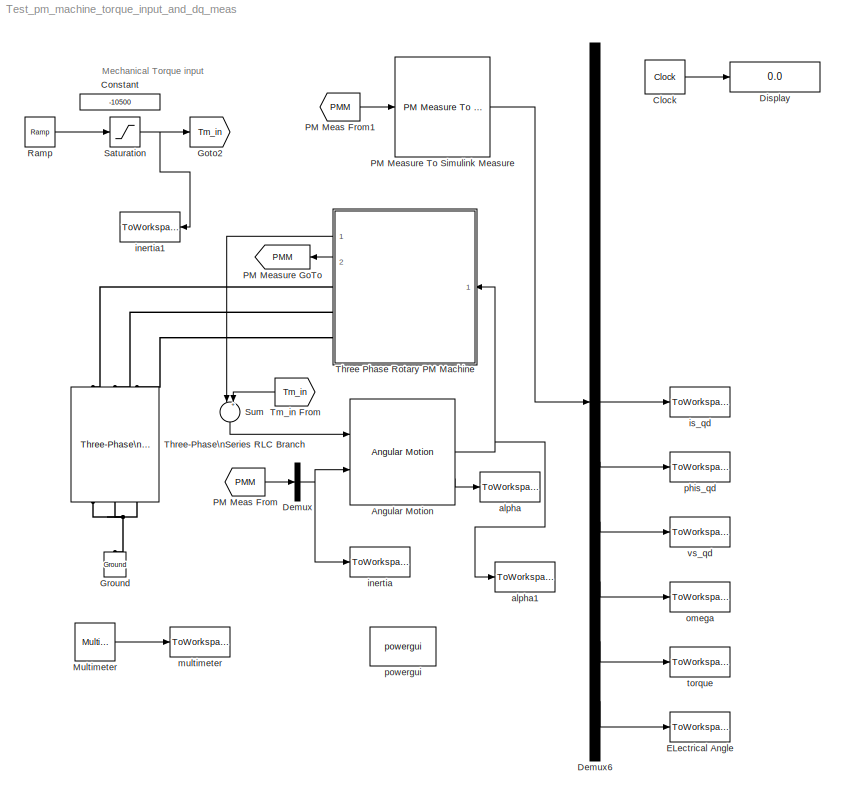
MODEL Test_pm_machine_torque_input_and_dq_meas
KIND model
BLOCK [Reference] Angular Motion  REF=pm_machines_library/Angular Motion  (lib defined in slx_81e85edba9f0)
  FunctionWithSeparateData = off
  GeneratePreprocessorConditionals = off
  Ports = [2, 3]
  RTWMemSecDataConstants = Inherit from model
  RTWMemSecDataInternal = Inherit from model
  RTWMemSecDataParameters = Inherit from model
  RTWMemSecFuncExecute = Inherit from model
  RTWMemSecFuncInitTerm = Inherit from model
  SID = 1
  ShowPortLabels = FromPortIcon
  SourceBlock = pm_machines_library/Angular Motion
  SourceType = SubSystem
  SystemSampleTime = -1
BLOCK [Clock] Clock
  Decimation = 10
  SID = 166
BLOCK [Constant] Constant
  SID = 137
  Value = -10500
BLOCK [Demux] Demux
  DisplayOption = bar
  Outputs = [10, 1, 6]
  Ports = [1, 3]
  SID = 2
BLOCK [Demux] Demux6
  DisplayOption = bar
  Outputs = [3 2 2 2 3 2 2 2 1 1 1]
  Ports = [1, 11]
  SID = 136
BLOCK [Display] Display
  Decimation = 1
  Lockdown = off
  Ports = [1]
  SID = 167
BLOCK [ToWorkspace] ELectrical Angle
  MaxDataPoints = inf
  Ports = [1]
  SID = 155
  SampleTime = -1
  SaveFormat = Array
  VariableName = E_theta
BLOCK [Goto] Goto2
  GotoTag = Tm_in
  SID = 138
  TagVisibility = global
BLOCK [Reference] Ground  REF=powerlib/Elements/Ground
  LConnTagsString = a
  LeftPortType = p1
  PhysicalDomain = powersysdomain
  Ports = [0, 0, 0, 0, 0, 1]
  RightPortType = p1
  SID = 150
  SourceBlock = powerlib/Elements/Ground
  SourceType = Ground
  SubClassName = unknown
BLOCK [Reference] Multimeter  REF=powerlib/Measurements/Multimeter
  AxesSetting = [0,0.1,-100,100]
  Display = 0
  FunctionWithSeparateData = off
  Gain = [1 1 1 1 1 1]
  GeneratePreprocessorConditionals = off
  L = 6
  OutputType = Complex
  PSBOutputType = 1
  PSBequivalent = 0
  PhasorSimulation = off
  Ports = [0, 1, 0, 0, 0, 1]
  RTWMemSecDataConstants = Inherit from model
  RTWMemSecDataInternal = Inherit from model
  RTWMemSecDataParameters = Inherit from model
  RTWMemSecFuncExecute = Inherit from model
  RTWMemSecFuncInitTerm = Inherit from model
  SID = 157
  SavedBlockNames = -11
  ShowPortLabels = FromPortIcon
  SourceBlock = powerlib/Measurements/Multimeter
  SourceType = MultimeterPSB
  SystemSampleTime = -1
  sel = [1 2 3 4 5 6]
  yselected = {'Ub1: Three-Phase Series RLC Branch','Ub2: Three-Phase Series RLC Branch','Ub3: Three-Phase Series RLC Branch','Ib1: Three-Phase Series RLC Branch','Ib2: Three-Phase Series RLC Branch','Ib3: Three-Phase Series RLC Branch'};
BLOCK [From] PM Meas From
  GotoTag = PMM
  SID = 130
BLOCK [From] PM Meas From1
  GotoTag = PMM
  SID = 131
BLOCK [Goto] PM Measure GoTo
  GotoTag = PMM
  SID = 132
  TagVisibility = local
BLOCK [Reference] PM Measure To Simulink Measure  REF=pm_machines_library/PM Measure To Simulink Measure  (lib defined in slx_81e85edba9f0)
  FunctionWithSeparateData = off
  GeneratePreprocessorConditionals = off
  Ports = [1, 1]
  RTWMemSecDataConstants = Inherit from model
  RTWMemSecDataInternal = Inherit from model
  RTWMemSecDataParameters = Inherit from model
  RTWMemSecFuncExecute = Inherit from model
  RTWMemSecFuncInitTerm = Inherit from model
  SID = 159
  ShowPortLabels = FromPortIcon
  SourceBlock = pm_machines_library/PM Measure To Simulink Measure
  SystemSampleTime = -1
  ref_type = Stationary
BLOCK [Reference] Ramp  REF=simulink/Sources/Ramp
  FunctionWithSeparateData = off
  GeneratePreprocessorConditionals = off
  Ports = [0, 1]
  RTWMemSecDataConstants = Inherit from model
  RTWMemSecDataInternal = Inherit from model
  RTWMemSecDataParameters = Inherit from model
  RTWMemSecFuncExecute = Inherit from model
  RTWMemSecFuncInitTerm = Inherit from model
  SID = 164
  ShowPortLabels = FromPortIcon
  SourceBlock = simulink/Sources/Ramp
  SourceType = Ramp
  SystemSampleTime = -1
  VectorParams1D = on
  X0 = 0
  slope = 5000
  start = 0
BLOCK [Saturate] Saturation
  InputPortMap = u0
  LowerLimit = -10500
  Ports = [1, 1]
  SID = 165
  UpperLimit = 10500
BLOCK [Sum] Sum
  IconShape = round
  InputSameDT = off
  Inputs = |++
  OutDataTypeStr = Inherit: Inherit via internal rule
  Ports = [2, 1]
  SID = 134
  SaturateOnIntegerOverflow = off
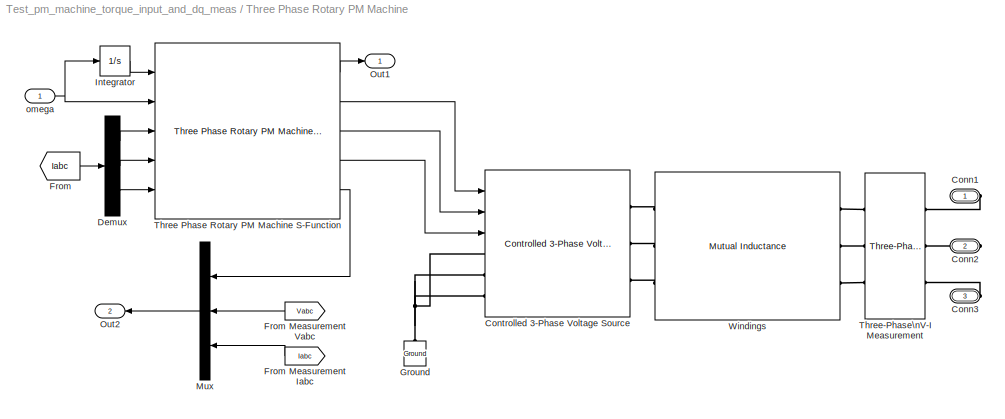
BLOCK [SubSystem] Three Phase Rotary PM Machine
  AncestorBlock = pm_machines_library/Three Phase Rotary PM Machine
  FunctionWithSeparateData = off
  MaskDisplay = port_label('input', 1, 'Omega')\nport_label('output', 1, 'Torque')\nport_label('output', 2, 'Meas')\nport_label('rconn', 1, 'Phase A')\nport_label('rconn', 2, 'Phase B')\nport_label('rconn', 3, 'Phase C')
  MaskHideContents = off
  MaskIconFrame = on
  MaskIconOpaque = on
  MaskIconRotate = none
  MaskIconUnits = autoscale
  MaskPortRotate = default
  MinAlgLoopOccurrences = off
  Opaque = off
  Ports = [1, 2, 0, 0, 0, 0, 3]
  PropExecContextOutsideSubsystem = off
  RTWSystemCode = Auto
  RequestExecContextInheritance = off
  SID = 135
BLOCK [PMIOPort] Three Phase Rotary PM Machine/Conn1
  Port = 1
  SID = 135:26
  Side = Right
BLOCK [PMIOPort] Three Phase Rotary PM Machine/Conn2
  Port = 2
  SID = 135:27
  Side = Right
BLOCK [PMIOPort] Three Phase Rotary PM Machine/Conn3
  Port = 3
  SID = 135:28
  Side = Right
BLOCK [Reference] Three Phase Rotary PM Machine/Controlled 3-Phase Voltage Source  REF=pm_machines_library/Controlled 3-Phase Voltage Source  (lib defined in slx_81e85edba9f0)
  FunctionWithSeparateData = off
  GeneratePreprocessorConditionals = off
  Ports = [3, 0, 0, 0, 0, 3, 3]
  RTWMemSecDataConstants = Inherit from model
  RTWMemSecDataInternal = Inherit from model
  RTWMemSecDataParameters = Inherit from model
  RTWMemSecFuncExecute = Inherit from model
  RTWMemSecFuncInitTerm = Inherit from model
  SID = 135:18
  ShowPortLabels = FromPortIcon
  SourceBlock = pm_machines_library/Controlled 3-Phase Voltage Source
  SourceType = Controlled 3-Phase Voltage Source
  SystemSampleTime = -1
BLOCK [Demux] Three Phase Rotary PM Machine/Demux
  DisplayOption = bar
  Outputs = 3
  Ports = [1, 3]
  SID = 135:19
BLOCK [From] Three Phase Rotary PM Machine/From
  GotoTag = Iabc
  SID = 135:20
  TagVisibility = global
BLOCK [From] Three Phase Rotary PM Machine/From Measurement Iabc
  GotoTag = Iabc
  SID = 135:45
  TagVisibility = global
BLOCK [From] Three Phase Rotary PM Machine/From Measurement Vabc
  GotoTag = Vabc
  SID = 135:44
  TagVisibility = global
BLOCK [Reference] Three Phase Rotary PM Machine/Ground  REF=powerlib/Elements/Ground
  LConnTagsString = a
  LeftPortType = p1
  PhysicalDomain = powersysdomain
  Ports = [0, 0, 0, 0, 0, 1]
  RightPortType = p1
  SID = 135:21
  SourceBlock = powerlib/Elements/Ground
  SourceType = Ground
  SubClassName = unknown
BLOCK [Integrator] Three Phase Rotary PM Machine/Integrator
  Ports = [1, 1]
  SID = 135:22
BLOCK [Mux] Three Phase Rotary PM Machine/Mux
  DisplayOption = bar
  Inputs = 3
  Ports = [3, 1]
  SID = 135:43
BLOCK [Outport] Three Phase Rotary PM Machine/Out1
  IconDisplay = Port number
  SID = 135:29
BLOCK [Outport] Three Phase Rotary PM Machine/Out2
  IconDisplay = Port number
  Port = 2
  SID = 135:30
BLOCK [Reference] Three Phase Rotary PM Machine/Three Phase Rotary PM Machine S-Function  REF=pm_machines_library/Three Phase Rotary PM Machine S-Function  (lib defined in slx_81e85edba9f0)
  Ports = [5, 5]
  SID = 135:23
  SourceBlock = pm_machines_library/Three Phase Rotary PM Machine S-Function
  UserData = DataTag0
  UserDataPersistent = on
BLOCK [Reference] Three Phase Rotary PM Machine/Three-Phase\nV-I Measurement  REF=powerlib/Measurements/Three-Phase\nV-I Measurement
  CurrentMeasurement = yes
  FunctionWithSeparateData = off
  GeneratePreprocessorConditionals = off
  Ipu = off
  LabelI = Iabc
  LabelV = Vabc
  OutputType = Complex
  PSBequivalent = 0
  Pbase = 100e6
  PhasorSimulation = off
  Ports = [0, 0, 0, 0, 0, 3, 3]
  RTWMemSecDataConstants = Inherit from model
  RTWMemSecDataInternal = Inherit from model
  RTWMemSecDataParameters = Inherit from model
  RTWMemSecFuncExecute = Inherit from model
  RTWMemSecFuncInitTerm = Inherit from model
  SID = 135:24
  SetLabelI = on
  SetLabelV = on
  ShowPortLabels = FromPortIcon
  SourceBlock = powerlib/Measurements/Three-Phase\nV-I Measurement
  SourceType = Three-Phase VI Measurement
  SystemSampleTime = -1
  Vbase = 500e3
  VoltageMeasurement = phase-to-ground
  Vpu = off
  VpuLL = off
BLOCK [Reference] Three Phase Rotary PM Machine/Windings  REF=powerlib/Elements/Mutual Inductance
  AttributesFormatString = \\n
  InductanceMatrix = [1.0 0.9  0.9 ;  0.9 1.0  0.9;  0.9 0.9 1.0 ] * 1e-3
  LConnTagsString = a|b|c
  LeftPortType = p1
  Measurements = None
  MutualImpedance = [0 0.0565839]
  NumberOfWindings = 3
  PhysicalDomain = powersysdomain
  Ports = [0, 0, 0, 0, 0, 3, 3]
  RConnTagsString = A|B|C
  ResistanceMatrix = [1.0 0.9  0.9 ;  0.9 1.0  0.9;  0.9 0.9 1.0 ]
  RightPortType = p1
  SID = 135:25
  SelfImpedance1 = [1.43469 0.184324]
  SelfImpedance2 = [1.43472 0.184324]
  SelfImpedance3 = [1.43475 0.184324]
  SourceBlock = powerlib/Elements/Mutual Inductance
  SourceType = Mutual Inductance
  SubClassName = unknown
  ThreeWindings = on
  TypeOfMutual = Two or three windings with equal mutual terms
BLOCK [Inport] Three Phase Rotary PM Machine/omega
  IconDisplay = Port number
  SID = 135:17
BLOCK [Reference] Three-Phase\nSeries RLC Branch  REF=powerlib/Elements/Three-Phase\nSeries RLC Branch
  AttributesFormatString = \\n
  BranchType = R
  Capacitance = 1.0
  Inductance = 1.0
  LConnTagsString = A|B|C
  LeftPortType = p1
  Measurements = Branch voltages and currents
  PhysicalDomain = powersysdomain
  Ports = [0, 0, 0, 0, 0, 3, 3]
  RConnTagsString = A|B|C
  Resistance = 57
  RightPortType = p1
  SID = 151
  SourceBlock = powerlib/Elements/Three-Phase\nSeries RLC Branch
  SourceType = Three-Phase Series RLC Branch
  SubClassName = unknown
BLOCK [From] Tm_in From
  GotoTag = Tm_in
  SID = 140
  TagVisibility = global
BLOCK [ToWorkspace] alpha
  MaxDataPoints = inf
  Ports = [1]
  SID = 160
  SampleTime = -1
  SaveFormat = Array
  VariableName = alpha
BLOCK [ToWorkspace] alpha1
  MaxDataPoints = inf
  Ports = [1]
  SID = 162
  SampleTime = -1
  SaveFormat = Array
  VariableName = omega2
BLOCK [ToWorkspace] inertia
  MaxDataPoints = inf
  Ports = [1]
  SID = 161
  SampleTime = -1
  SaveFormat = Array
  VariableName = mofinertia
BLOCK [ToWorkspace] inertia1
  MaxDataPoints = inf
  Ports = [1]
  SID = 163
  SampleTime = -1
  SaveFormat = Array
  VariableName = input_torque
BLOCK [ToWorkspace] is_qd
  MaxDataPoints = inf
  Ports = [1]
  SID = 144
  SampleTime = -1
  SaveFormat = Array
  VariableName = is_qd
BLOCK [ToWorkspace] multimeter
  MaxDataPoints = inf
  Ports = [1]
  SID = 158
  SampleTime = -1
  SaveFormat = Array
  VariableName = multimeter
BLOCK [ToWorkspace] omega
  MaxDataPoints = inf
  Ports = [1]
  SID = 153
  SampleTime = -1
  SaveFormat = Array
  VariableName = omega
BLOCK [ToWorkspace] phis_qd
  MaxDataPoints = inf
  Ports = [1]
  SID = 145
  SampleTime = -1
  SaveFormat = Array
  VariableName = phis_qd
BLOCK [Reference] powergui  REF=powerlib/powergui
  DisableRonSwitches = off
  DisableSnubberDevices = off
  DisableVfSwitches = off
  DisplayEquations = off
  DisplayStyle = 1
  EnableUseOfTLC = off
  ErrMax = 1e-4
  FreqAxis = off
  FunctionMessages = off
  FunctionWithSeparateData = off
  GeneratePreprocessorConditionals = off
  HookPort = off
  Interpol = off
  Iterations = 50
  MaxFrequency = 1000
  Pbase = 100e6
  Ports = []
  Priority = 1
  RTWMemSecDataConstants = Inherit from model
  RTWMemSecDataInternal = Inherit from model
  RTWMemSecDataParameters = Inherit from model
  RTWMemSecFuncExecute = Inherit from model
  RTWMemSecFuncInitTerm = Inherit from model
  ResistiveCurrentMeasurement = off
  RestoreLinks = warning
  SID = 147
  SPID = off
  SampleTime = 50e-6
  ShowGrid = off
  ShowPortLabels = FromPortIcon
  SourceBlock = powerlib/powergui
  SourceType = PSB option menu block
  StartTime = 0.0
  SwTol = 0
  SystemSampleTime = -1
  UnitsV = kV
  UnitsW = MW
  UserDataPersistent = on
  Xlog = on
  Ylog = off
  ZoomFFT = off
  cycles = 1
  display = off
  echomessages = off
  frequency = 60
  frequencyindice = 0
  frequencyindicesteady = 1
  methode = off
  save = off
  variable = ZData
  x0status = blocks
BLOCK [ToWorkspace] torque
  MaxDataPoints = inf
  Ports = [1]
  SID = 154
  SampleTime = -1
  SaveFormat = Array
  VariableName = torque
BLOCK [ToWorkspace] vs_qd
  MaxDataPoints = inf
  Ports = [1]
  SID = 146
  SampleTime = -1
  SaveFormat = Array
  VariableName = vs_qd
ANNOTATION (root): Mechanical Torque input
NET Angular Motion:2 -> Three Phase Rotary PM Machine:1, alpha1:1
LINE Angular Motion:3 -> alpha:1
LINE Clock:1 -> Display:1
LINE Demux6:10 -> torque:1
LINE Demux6:11 -> ELectrical Angle:1
LINE Demux6:6 -> is_qd:1
LINE Demux6:7 -> phis_qd:1
LINE Demux6:8 -> vs_qd:1
LINE Demux6:9 -> omega:1
NET Demux:2 -> Angular Motion:2, inertia:1
LINE Multimeter:1 -> multimeter:1
LINE PM Meas From1:1 -> PM Measure To Simulink Measure:1
LINE PM Meas From:1 -> Demux:1
LINE PM Measure To Simulink Measure:1 -> Demux6:1
LINE Ramp:1 -> Saturation:1
NET Saturation:1 -> Goto2:1, inertia1:1
LINE Sum:1 -> Angular Motion:1
LINE Three Phase Rotary PM Machine/Demux:1 -> Three Phase Rotary PM Machine/Three Phase Rotary PM Machine S-Function:3
LINE Three Phase Rotary PM Machine/Demux:2 -> Three Phase Rotary PM Machine/Three Phase Rotary PM Machine S-Function:4
LINE Three Phase Rotary PM Machine/Demux:3 -> Three Phase Rotary PM Machine/Three Phase Rotary PM Machine S-Function:5
LINE Three Phase Rotary PM Machine/From Measurement Iabc:1 -> Three Phase Rotary PM Machine/Mux:3
LINE Three Phase Rotary PM Machine/From Measurement Vabc:1 -> Three Phase Rotary PM Machine/Mux:2
LINE Three Phase Rotary PM Machine/From:1 -> Three Phase Rotary PM Machine/Demux:1
LINE Three Phase Rotary PM Machine/Integrator:1 -> Three Phase Rotary PM Machine/Three Phase Rotary PM Machine S-Function:1
LINE Three Phase Rotary PM Machine/Mux:1 -> Three Phase Rotary PM Machine/Out2:1
LINE Three Phase Rotary PM Machine/Three Phase Rotary PM Machine S-Function:1 -> Three Phase Rotary PM Machine/Out1:1
LINE Three Phase Rotary PM Machine/Three Phase Rotary PM Machine S-Function:2 -> Three Phase Rotary PM Machine/Controlled 3-Phase Voltage Source:1
LINE Three Phase Rotary PM Machine/Three Phase Rotary PM Machine S-Function:3 -> Three Phase Rotary PM Machine/Controlled 3-Phase Voltage Source:2
LINE Three Phase Rotary PM Machine/Three Phase Rotary PM Machine S-Function:4 -> Three Phase Rotary PM Machine/Controlled 3-Phase Voltage Source:3
LINE Three Phase Rotary PM Machine/Three Phase Rotary PM Machine S-Function:5 -> Three Phase Rotary PM Machine/Mux:1
NET Three Phase Rotary PM Machine/omega:1 -> Three Phase Rotary PM Machine/Integrator:1, Three Phase Rotary PM Machine/Three Phase Rotary PM Machine S-Function:2
LINE Three Phase Rotary PM Machine:1 -> Sum:1
LINE Three Phase Rotary PM Machine:2 -> PM Measure GoTo:1
LINE Tm_in From:1 -> Sum:2
PNET net1: Ground:LConn1 -- Three-Phase\nSeries RLC Branch:RConn1 -- Three-Phase\nSeries RLC Branch:RConn2 -- Three-Phase\nSeries RLC Branch:RConn3
PLINE Three Phase Rotary PM Machine/Conn1:RConn1 -- Three Phase Rotary PM Machine/Three-Phase\nV-I Measurement:RConn1
PLINE Three Phase Rotary PM Machine/Conn2:RConn1 -- Three Phase Rotary PM Machine/Three-Phase\nV-I Measurement:RConn2
PLINE Three Phase Rotary PM Machine/Conn3:RConn1 -- Three Phase Rotary PM Machine/Three-Phase\nV-I Measurement:RConn3
PNET net2: Three Phase Rotary PM Machine/Controlled 3-Phase Voltage Source:LConn1 -- Three Phase Rotary PM Machine/Controlled 3-Phase Voltage Source:LConn2 -- Three Phase Rotary PM Machine/Controlled 3-Phase Voltage Source:LConn3 -- Three Phase Rotary PM Machine/Ground:LConn1
PLINE Three Phase Rotary PM Machine/Controlled 3-Phase Voltage Source:RConn1 -- Three Phase Rotary PM Machine/Windings:LConn1
PLINE Three Phase Rotary PM Machine/Controlled 3-Phase Voltage Source:RConn2 -- Three Phase Rotary PM Machine/Windings:LConn2
PLINE Three Phase Rotary PM Machine/Controlled 3-Phase Voltage Source:RConn3 -- Three Phase Rotary PM Machine/Windings:LConn3
PLINE Three Phase Rotary PM Machine/Three-Phase\nV-I Measurement:LConn1 -- Three Phase Rotary PM Machine/Windings:RConn1
PLINE Three Phase Rotary PM Machine/Three-Phase\nV-I Measurement:LConn2 -- Three Phase Rotary PM Machine/Windings:RConn2
PLINE Three Phase Rotary PM Machine/Three-Phase\nV-I Measurement:LConn3 -- Three Phase Rotary PM Machine/Windings:RConn3
PLINE Three Phase Rotary PM Machine:RConn1 -- Three-Phase\nSeries RLC Branch:LConn1
PLINE Three Phase Rotary PM Machine:RConn2 -- Three-Phase\nSeries RLC Branch:LConn2
PLINE Three Phase Rotary PM Machine:RConn3 -- Three-Phase\nSeries RLC Branch:LConn3
note: NET lines group one-source signal fan-out (src -> all destinations, sorted); 1:1 wires keep LINE; PNET lines group multi-terminal physical nets as a canonical sorted terminal list (undirected conserving connections); 2-terminal nets keep the pairwise PLINE form
